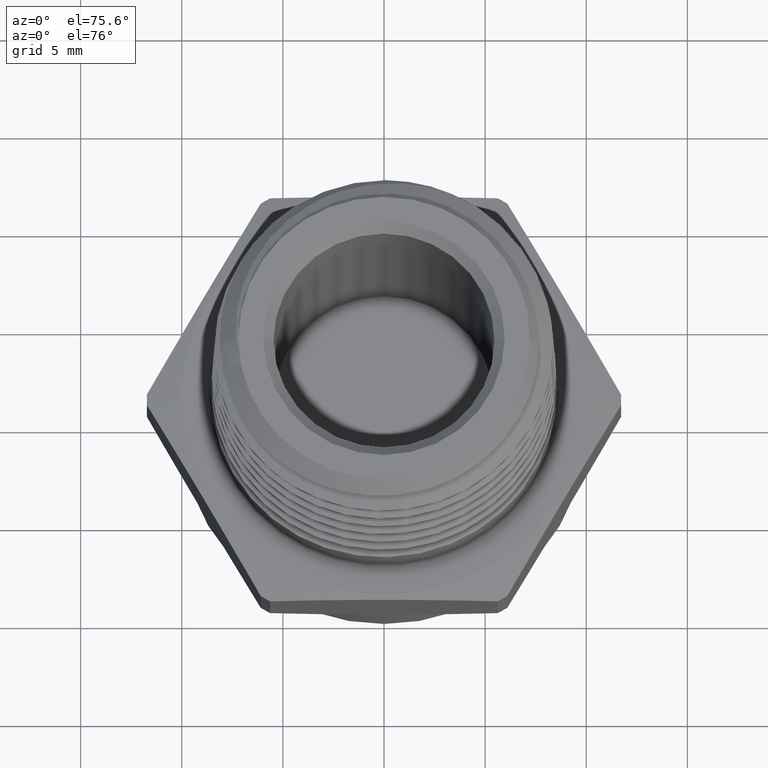
[diagram: clean part render]
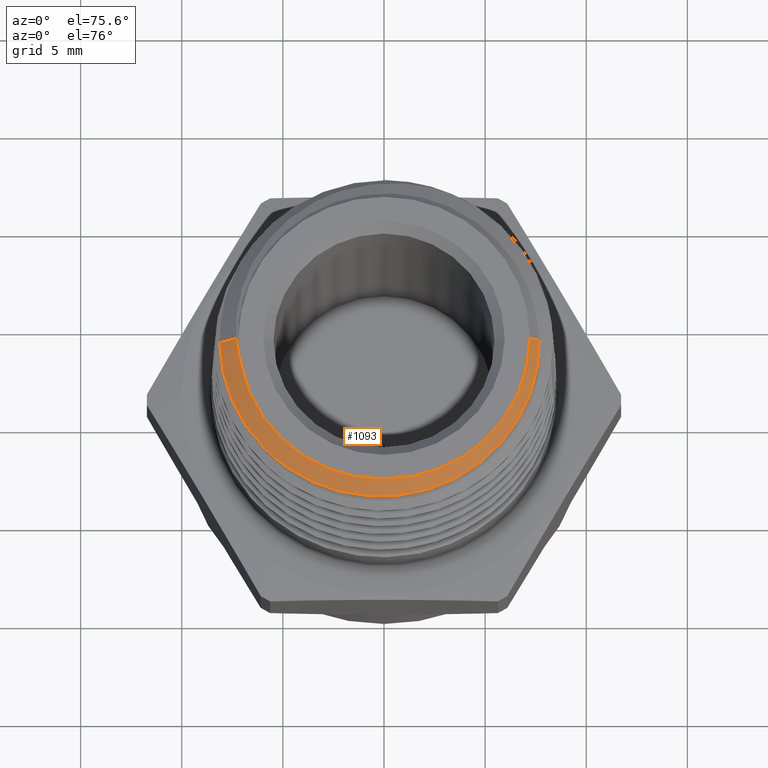
[diagram: same view with one face highlighted and labeled with its STEP entity id]
A machine part, auxiliary view. The second image highlights one B-rep face of the part: STEP entity #1093.
In plain terms, the highlighted conical surface has half-angle 45 deg.
Its self-contained STEP definition (entity closure, byte-faithful):
#4 = B_SPLINE_CURVE_WITH_KNOTS ( 'NONE', 3,
 ( #3607, #3606, #3614, #3615, #3616, #3617, #3618, #3619, #3620, #3621, #3622, #3623, #3624, #3625, #3626, #3627, #3628, #3629, #3630, #3631, #3632, #3633, #3634, #3635, #3636, #3637, #3638, #3639, #3640, #3641, #3642, #3643, #3644, #3645, #3646, #3647, #3648, #3649, #3650, #3651, #3652, #3653, #3654, #3655, #3656, #3657, #3658, #3659 ),
 .UNSPECIFIED., .F., .F.,
 ( 4, 2, 2, 2, 2, 2, 2, 2, 2, 2, 2, 2, 2, 2, 2, 2, 2, 2, 2, 2, 2, 2, 2, 4 ),
 ( 0.01299472254944125500, 0.01376717789721784000, 0.01453963324499442600, 0.01608454394054759400, 0.01762945463610076500, 0.01840190998387734900, 0.01917436533165393200, 0.02071927602720710300, 0.02149173137498368600, 0.02226418672276027400, 0.02303664207053685700, 0.02380909741831344100, 0.02535400811386661500, 0.02689891880941978200, 0.02844382950497295600, 0.02921628485274954000, 0.02998874020052612300, 0.03153365089607930400, 0.03307856159163247200, 0.03385101693940906200, 0.03462347228718565300, 0.03616838298273883400, 0.03694083833051542400, 0.03771329367829201500 ),
 .UNSPECIFIED. ) ;
#14 = B_SPLINE_CURVE_WITH_KNOTS ( 'NONE', 3,
 ( #3598, #3599, #3604, #3605 ),
 .UNSPECIFIED., .F., .F.,
 ( 4, 4 ),
 ( 0.0005361896884913290100, 0.001752663654119928200 ),
 .UNSPECIFIED. ) ;
#15 = B_SPLINE_CURVE_WITH_KNOTS ( 'NONE', 3,
 ( #3593, #3603, #3608, #3609 ),
 .UNSPECIFIED., .F., .F.,
 ( 4, 4 ),
 ( 1.555826717575857600E-016, 0.001223488027510209000 ),
 .UNSPECIFIED. ) ;
#31 = FACE_OUTER_BOUND ( 'NONE', #767, .T. ) ;
#42 = CONICAL_SURFACE ( 'NONE', #2781, 0.3317566930126649200, 0.7853981633974536100 ) ;
#767 = EDGE_LOOP ( 'NONE', ( #2425, #2408, #2407, #2406, #2405, #2404, #2403 ) ) ;
#1093 = ADVANCED_FACE ( 'NONE', ( #31 ), #42, .T. ) ;
#1542 = VECTOR ( 'NONE', #3597, 39.37007874015748100 ) ;
#1543 = LINE ( 'NONE', #3610, #1550 ) ;
#1544 = LINE ( 'NONE', #3548, #1546 ) ;
#1545 = LINE ( 'NONE', #3596, #1542 ) ;
#1546 = VECTOR ( 'NONE', #3547, 39.37007874015748100 ) ;
#1547 = CIRCLE ( 'NONE', #2867, 0.2838000000000001100 ) ;
#1550 = VECTOR ( 'NONE', #3611, 39.37007874015748100 ) ;
#1703 = VERTEX_POINT ( 'NONE', #2099 ) ;
#1710 = VERTEX_POINT ( 'NONE', #2106 ) ;
#2099 = CARTESIAN_POINT ( 'NONE',  ( -0.2838000000000001100, 0.0000000000000000000, 0.5899999999999999700 ) ) ;
#2106 = CARTESIAN_POINT ( 'NONE',  ( -0.2804411006234879300, -0.04763465816674891000, 0.5893421444612986200 ) ) ;
#2403 = ORIENTED_EDGE ( 'NONE', *, *, #5467, .T. ) ;
#2404 = ORIENTED_EDGE ( 'NONE', *, *, #5466, .T. ) ;
#2405 = ORIENTED_EDGE ( 'NONE', *, *, #5465, .T. ) ;
#2406 = ORIENTED_EDGE ( 'NONE', *, *, #5464, .T. ) ;
#2407 = ORIENTED_EDGE ( 'NONE', *, *, #5462, .T. ) ;
#2408 = ORIENTED_EDGE ( 'NONE', *, *, #5463, .T. ) ;
#2425 = ORIENTED_EDGE ( 'NONE', *, *, #5459, .F. ) ;
#2781 = AXIS2_PLACEMENT_3D ( 'NONE', #3235, #3268, #3277 ) ;
#2867 = AXIS2_PLACEMENT_3D ( 'NONE', #3600, #3601, #3602 ) ;
#3235 = CARTESIAN_POINT ( 'NONE',  ( 0.0000000000000000000, 0.0000000000000000000, 0.5420433069873357200 ) ) ;
#3268 = DIRECTION ( 'NONE',  ( -0.0000000000000000000, -0.0000000000000000000, -1.000000000000000000 ) ) ;
#3277 = DIRECTION ( 'NONE',  ( -1.000000000000000000, 0.0000000000000000000, 0.0000000000000000000 ) ) ;
#3331 = VERTEX_POINT ( 'NONE', #3493 ) ;
#3493 = CARTESIAN_POINT ( 'NONE',  ( -0.3198490305247829200, 3.231021029591370400E-016, 0.5539509694752177100 ) ) ;
#3539 = CARTESIAN_POINT ( 'NONE',  ( -0.2845128895515026700, -3.414809992080329000E-017, 0.5892871104484974600 ) ) ;
#3540 = CARTESIAN_POINT ( 'NONE',  ( -0.2879028325516334600, -3.355264184612483700E-013, 0.5858971674483666200 ) ) ;
#3542 = CARTESIAN_POINT ( 'NONE',  ( 0.2838000000000001100, 3.697608685098229200E-017, 0.5899999999999999700 ) ) ;
#3544 = CARTESIAN_POINT ( 'NONE',  ( 0.3019762805559718700, 7.256471233170699500E-017, 0.5718237194440284300 ) ) ;
#3547 = DIRECTION ( 'NONE',  ( 0.7071067811865512400, 8.659560562354978500E-017, -0.7071067811865438000 ) ) ;
#3548 = CARTESIAN_POINT ( 'NONE',  ( 0.3317566930126649200, 4.062847721936711800E-017, 0.5420433069873357200 ) ) ;
#3593 = CARTESIAN_POINT ( 'NONE',  ( -0.2804411006234879300, -0.04763465816674891000, 0.5893421444612986200 ) ) ;
#3596 = CARTESIAN_POINT ( 'NONE',  ( -0.3317566930126649200, 0.0000000000000000000, 0.5420433069873357200 ) ) ;
#3597 = DIRECTION ( 'NONE',  ( -0.7071067811865512400, 0.0000000000000000000, -0.7071067811865438000 ) ) ;
#3598 = CARTESIAN_POINT ( 'NONE',  ( -0.2845128895515026700, -3.414809992080329000E-017, 0.5892871104484974600 ) ) ;
#3599 = CARTESIAN_POINT ( 'NONE',  ( -0.2845001571392051800, -0.01596394462274946700, 0.5892998428607947300 ) ) ;
#3600 = CARTESIAN_POINT ( 'NONE',  ( 0.0000000000000000000, 0.0000000000000000000, 0.5899999999999999700 ) ) ;
#3601 = DIRECTION ( 'NONE',  ( -0.0000000000000000000, -0.0000000000000000000, -1.000000000000000000 ) ) ;
#3602 = DIRECTION ( 'NONE',  ( -1.000000000000000000, 0.0000000000000000000, 0.0000000000000000000 ) ) ;
#3603 = CARTESIAN_POINT ( 'NONE',  ( -0.2843080276471346400, -0.03185664178745680600, 0.5881719716316188300 ) ) ;
#3604 = CARTESIAN_POINT ( 'NONE',  ( -0.2831298294750958500, -0.03189819327751717400, 0.5893265746674504200 ) ) ;
#3605 = CARTESIAN_POINT ( 'NONE',  ( -0.2804411006234879300, -0.04763465816674891000, 0.5893421444612986200 ) ) ;
#3606 = CARTESIAN_POINT ( 'NONE',  ( -0.3196669143997032400, -0.01023886770468454400, 0.5541330856002973900 ) ) ;
#3607 = CARTESIAN_POINT ( 'NONE',  ( -0.3198490305247829200, 3.231021029591370400E-016, 0.5539509694752177100 ) ) ;
#3608 = CARTESIAN_POINT ( 'NONE',  ( -0.2867591558004181600, -0.01597460336775339100, 0.5870408441995633700 ) ) ;
#3609 = CARTESIAN_POINT ( 'NONE',  ( -0.2879028325516334600, -3.355264184612483700E-013, 0.5858971674483666200 ) ) ;
#3610 = CARTESIAN_POINT ( 'NONE',  ( -0.3317566930126649200, 0.0000000000000000000, 0.5420433069873357200 ) ) ;
#3611 = DIRECTION ( 'NONE',  ( -0.7071067811865512400, 0.0000000000000000000, -0.7071067811865438000 ) ) ;
#3614 = CARTESIAN_POINT ( 'NONE',  ( -0.3189870343248482100, -0.02048995156991516000, 0.5543179064996353000 ) ) ;
#3615 = CARTESIAN_POINT ( 'NONE',  ( -0.3166690668718223900, -0.04073331671500141800, 0.5546844364673639800 ) ) ;
#3616 = CARTESIAN_POINT ( 'NONE',  ( -0.3150307854697629900, -0.05076722431954328700, 0.5548668852132914200 ) ) ;
#3617 = CARTESIAN_POINT ( 'NONE',  ( -0.3086862066485056600, -0.08060712011629764300, 0.5554115872342877400 ) ) ;
#3618 = CARTESIAN_POINT ( 'NONE',  ( -0.3024691779386667300, -0.1003326236883408700, 0.5557730204087544300 ) ) ;
#3619 = CARTESIAN_POINT ( 'NONE',  ( -0.2865631297787233400, -0.1377470904774223400, 0.5564994972389361000 ) ) ;
#3620 = CARTESIAN_POINT ( 'NONE',  ( -0.2768932096105052300, -0.1555305442584311900, 0.5568680960787123500 ) ) ;
#3621 = CARTESIAN_POINT ( 'NONE',  ( -0.2598167133555067700, -0.1808223008445318200, 0.5574173408340337100 ) ) ;
#3622 = CARTESIAN_POINT ( 'NONE',  ( -0.2536562604319901300, -0.1890627549223476700, 0.5576011634299031800 ) ) ;
#3623 = CARTESIAN_POINT ( 'NONE',  ( -0.2406282386876400800, -0.2048260588179378900, 0.5579659547833405500 ) ) ;
#3624 = CARTESIAN_POINT ( 'NONE',  ( -0.2337782235706972200, -0.2123380082247962000, 0.5581466114378064200 ) ) ;
#3625 = CARTESIAN_POINT ( 'NONE',  ( -0.2122413303071280200, -0.2337877873017912000, 0.5586927033307385000 ) ) ;
#3626 = CARTESIAN_POINT ( 'NONE',  ( -0.1965755225490723200, -0.2466482062632883700, 0.5590643032440409900 ) ) ;
#3627 = CARTESIAN_POINT ( 'NONE',  ( -0.1710638710812151500, -0.2637237499597269200, 0.5596210930765067600 ) ) ;
#3628 = CARTESIAN_POINT ( 'NONE',  ( -0.1622538348351451300, -0.2690152070172154900, 0.5598061305501476100 ) ) ;
#3629 = CARTESIAN_POINT ( 'NONE',  ( -0.1443350605810460300, -0.2786279562488921400, 0.5601715426763158600 ) ) ;
#3630 = CARTESIAN_POINT ( 'NONE',  ( -0.1351839246680576800, -0.2829785165060423900, 0.5603528584090516900 ) ) ;
#3631 = CARTESIAN_POINT ( 'NONE',  ( -0.1165009839155672400, -0.2907744466270602600, 0.5607188055096813400 ) ) ;
#3632 = CARTESIAN_POINT ( 'NONE',  ( -0.1069688621252225800, -0.2942190218604247000, 0.5609043103813397000 ) ) ;
#3633 = CARTESIAN_POINT ( 'NONE',  ( -0.08751843917434243300, -0.3001899109667244800, 0.5612779973589217000 ) ) ;
#3634 = CARTESIAN_POINT ( 'NONE',  ( -0.07754431581550509700, -0.3027264747229591600, 0.5614669541183869800 ) ) ;
#3635 = CARTESIAN_POINT ( 'NONE',  ( -0.04748049760923832300, -0.3088134887181200300, 0.5620274274213974400 ) ) ;
#3636 = CARTESIAN_POINT ( 'NONE',  ( -0.02732020116120858700, -0.3108712028405030100, 0.5623897906747392600 ) ) ;
#3637 = CARTESIAN_POINT ( 'NONE',  ( 0.01323138168449229100, -0.3110516055948869800, 0.5631278397901569000 ) ) ;
#3638 = CARTESIAN_POINT ( 'NONE',  ( 0.03383779172205951500, -0.3091057892115291500, 0.5635125013598884000 ) ) ;
#3639 = CARTESIAN_POINT ( 'NONE',  ( 0.07373847638161125400, -0.3013142427654973400, 0.5642606930742785100 ) ) ;
#3640 = CARTESIAN_POINT ( 'NONE',  ( 0.09313976916151456300, -0.2955142638547512700, 0.5646253646956591600 ) ) ;
#3641 = CARTESIAN_POINT ( 'NONE',  ( 0.1214050252856892800, -0.2839143587199417500, 0.5651855838662126500 ) ) ;
#3642 = CARTESIAN_POINT ( 'NONE',  ( 0.1307355852972170400, -0.2795303780559628100, 0.5653769869348910200 ) ) ;
#3643 = CARTESIAN_POINT ( 'NONE',  ( 0.1487659099935688400, -0.2699317147563007300, 0.5657575417632553200 ) ) ;
#3644 = CARTESIAN_POINT ( 'NONE',  ( 0.1574841413487543000, -0.2647168071611327200, 0.5659467083978558800 ) ) ;
#3645 = CARTESIAN_POINT ( 'NONE',  ( 0.1827700572806730500, -0.2478561352185642000, 0.5665099365010186600 ) ) ;
#3646 = CARTESIAN_POINT ( 'NONE',  ( 0.1984788336382976000, -0.2350081737686354800, 0.5668778359104611500 ) ) ;
#3647 = CARTESIAN_POINT ( 'NONE',  ( 0.2274823008042804700, -0.2059346025256606200, 0.5676369986991755000 ) ) ;
#3648 = CARTESIAN_POINT ( 'NONE',  ( 0.2403106631370272000, -0.1901634773699426900, 0.5680204641782913300 ) ) ;
#3649 = CARTESIAN_POINT ( 'NONE',  ( 0.2570808119209093700, -0.1648233914508747100, 0.5685873943897135100 ) ) ;
#3650 = CARTESIAN_POINT ( 'NONE',  ( 0.2622599500830976600, -0.1560891306607782900, 0.5687754575458652300 ) ) ;
#3651 = CARTESIAN_POINT ( 'NONE',  ( 0.2717747706589724300, -0.1380304141378450600, 0.5691530000720012000 ) ) ;
#3652 = CARTESIAN_POINT ( 'NONE',  ( 0.2761175228485558400, -0.1286737770497065100, 0.5693430875058380600 ) ) ;
#3653 = CARTESIAN_POINT ( 'NONE',  ( 0.2875703815786401200, -0.1003277186912821100, 0.5699133229903758900 ) ) ;
#3654 = CARTESIAN_POINT ( 'NONE',  ( 0.2932311924329035800, -0.08088240343168061300, 0.5702981058094432900 ) ) ;
#3655 = CARTESIAN_POINT ( 'NONE',  ( 0.2987949972767308700, -0.05090179175048461400, 0.5708706866359772900 ) ) ;
#3656 = CARTESIAN_POINT ( 'NONE',  ( 0.3001610445120738200, -0.04072443913653566600, 0.5710620686955202300 ) ) ;
#3657 = CARTESIAN_POINT ( 'NONE',  ( 0.3018472739647619100, -0.02030845490102717300, 0.5714436992464416700 ) ) ;
#3658 = CARTESIAN_POINT ( 'NONE',  ( 0.3021672480374467700, -0.01013656346677849400, 0.5716327519625537000 ) ) ;
#3659 = CARTESIAN_POINT ( 'NONE',  ( 0.3019762805559718700, 7.256471233170699500E-017, 0.5718237194440284300 ) ) ;
#5411 = VERTEX_POINT ( 'NONE', #3539 ) ;
#5418 = VERTEX_POINT ( 'NONE', #3542 ) ;
#5419 = VERTEX_POINT ( 'NONE', #3540 ) ;
#5421 = VERTEX_POINT ( 'NONE', #3544 ) ;
#5459 = EDGE_CURVE ( 'NONE', #5418, #5421, #1544, .T. ) ;
#5462 = EDGE_CURVE ( 'NONE', #1703, #5411, #1545, .T. ) ;
#5463 = EDGE_CURVE ( 'NONE', #5418, #1703, #1547, .T. ) ;
#5464 = EDGE_CURVE ( 'NONE', #5411, #1710, #14, .T. ) ;
#5465 = EDGE_CURVE ( 'NONE', #1710, #5419, #15, .T. ) ;
#5466 = EDGE_CURVE ( 'NONE', #5419, #3331, #1543, .T. ) ;
#5467 = EDGE_CURVE ( 'NONE', #3331, #5421, #4, .T. ) ;